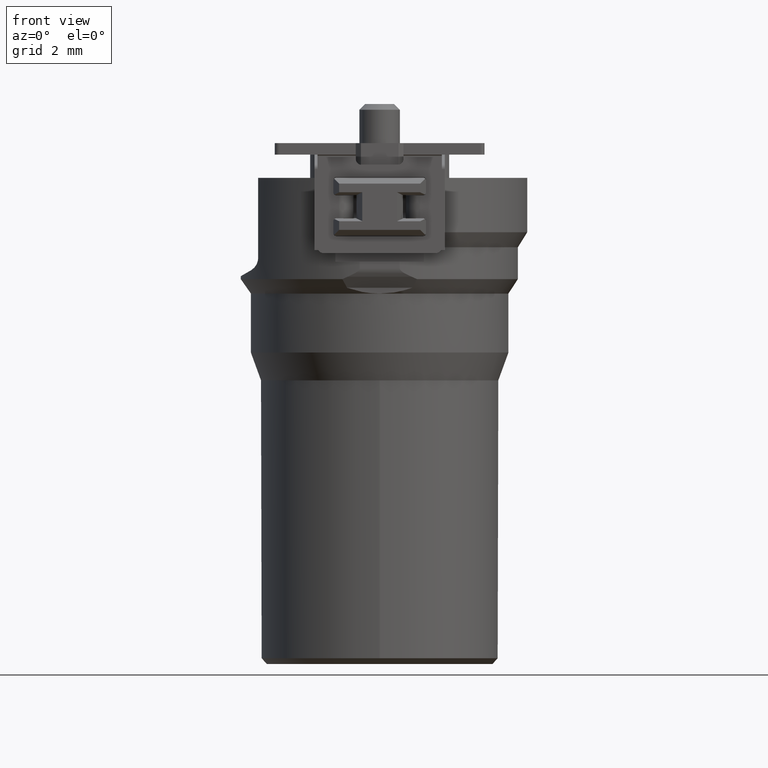
[diagram: clean part render]
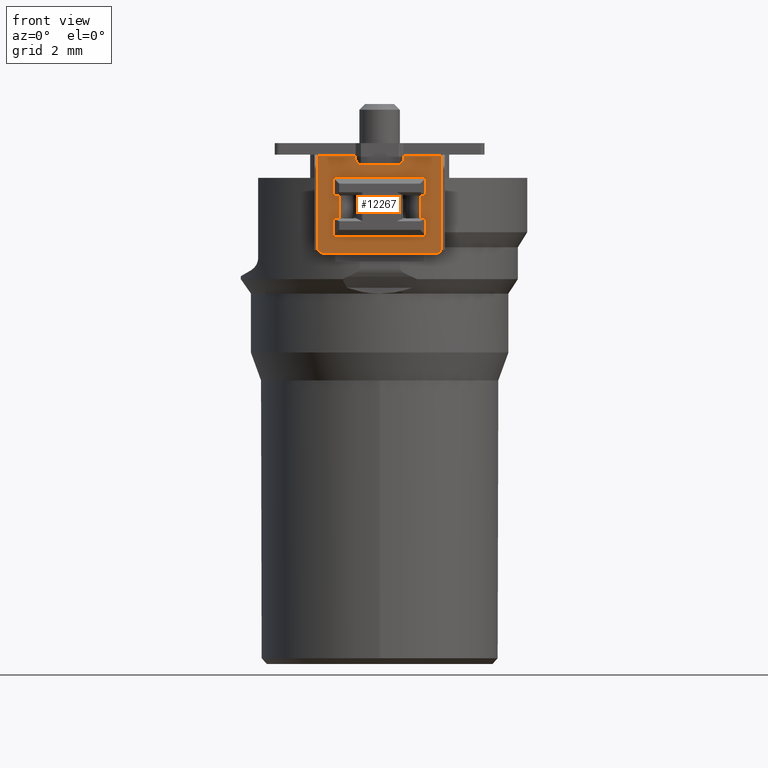
[diagram: same view with one face highlighted and labeled with its STEP entity id]
A machine part, front view. The second image highlights one B-rep face of the part: STEP entity #12267.
In plain terms, the highlighted planar face has unit normal (0, 1, 0).
Its self-contained STEP definition (entity closure, byte-faithful):
#2757=CARTESIAN_POINT('',(6.25E-1,-5.7E0,-5.514601836603E-1));
#2758=DIRECTION('',(0.E0,1.E0,0.E0));
#2759=DIRECTION('',(1.E0,0.E0,0.E0));
#2760=AXIS2_PLACEMENT_3D('',#2757,#2758,#2759);
#2972=DIRECTION('',(1.E0,0.E0,0.E0));
#2973=VECTOR('',#2972,1.325E0);
#2974=CARTESIAN_POINT('',(-2.15E0,-5.7E0,-4.5E-1));
#2975=LINE('',#2974,#2973);
#2976=DIRECTION('',(0.E0,1.750792059818E-14,-1.E0));
#2977=VECTOR('',#2976,1.014601836603E-1);
#2978=CARTESIAN_POINT('',(-8.25E-1,-5.7E0,-4.5E-1));
#2979=LINE('',#2978,#2977);
#2980=DIRECTION('',(1.E0,0.E0,0.E0));
#2981=VECTOR('',#2980,1.25E0);
#2982=CARTESIAN_POINT('',(-6.25E-1,-5.7E0,-7.514601836603E-1));
#2983=LINE('',#2982,#2981);
#2984=DIRECTION('',(0.E0,1.750792059818E-14,-1.E0));
#2985=VECTOR('',#2984,1.014601836603E-1);
#2986=CARTESIAN_POINT('',(8.25E-1,-5.7E0,-4.5E-1));
#2987=LINE('',#2986,#2985);
#2988=DIRECTION('',(1.E0,0.E0,0.E0));
#2989=VECTOR('',#2988,1.325E0);
#2990=CARTESIAN_POINT('',(8.25E-1,-5.7E0,-4.5E-1));
#2991=LINE('',#2990,#2989);
#2992=DIRECTION('',(0.E0,0.E0,-1.E0));
#2993=VECTOR('',#2992,3.151460183660E0);
#2994=CARTESIAN_POINT('',(2.15E0,-5.7E0,-4.5E-1));
#2995=LINE('',#2994,#2993);
#2996=CARTESIAN_POINT('',(1.95E0,-5.7E0,-3.601460183660E0));
#2997=DIRECTION('',(0.E0,-1.E0,0.E0));
#2998=DIRECTION('',(0.E0,0.E0,-1.E0));
#2999=AXIS2_PLACEMENT_3D('',#2996,#2997,#2998);
#3001=DIRECTION('',(-1.E0,0.E0,0.E0));
#3002=VECTOR('',#3001,3.9E0);
#3003=CARTESIAN_POINT('',(1.95E0,-5.7E0,-3.801460183660E0));
#3004=LINE('',#3003,#3002);
#3005=CARTESIAN_POINT('',(-1.95E0,-5.7E0,-3.601460183660E0));
#3006=DIRECTION('',(0.E0,-1.E0,0.E0));
#3007=DIRECTION('',(-1.E0,0.E0,0.E0));
#3008=AXIS2_PLACEMENT_3D('',#3005,#3006,#3007);
#3010=DIRECTION('',(0.E0,0.E0,1.E0));
#3011=VECTOR('',#3010,3.151460183660E0);
#3012=CARTESIAN_POINT('',(-2.15E0,-5.7E0,-3.601460183660E0));
#3013=LINE('',#3012,#3011);
#3014=DIRECTION('',(0.E0,1.040043935800E-13,1.E0));
#3015=VECTOR('',#3014,8.539816339747E-3);
#3016=CARTESIAN_POINT('',(1.6E0,-5.7E0,-2.7E0));
#3017=LINE('',#3016,#3015);
#3018=DIRECTION('',(-1.E0,-2.664535259100E-14,0.E0));
#3019=VECTOR('',#3018,1.E-1);
#3020=CARTESIAN_POINT('',(1.5E0,-5.7E0,-2.591460183660E0));
#3021=LINE('',#3020,#3019);
#3022=DIRECTION('',(0.E0,0.E0,-1.E0));
#3023=VECTOR('',#3022,7.8E-1);
#3024=CARTESIAN_POINT('',(1.4E0,-5.7E0,-1.811460183660E0));
#3025=LINE('',#3024,#3023);
#3026=DIRECTION('',(1.E0,1.776356839400E-14,0.E0));
#3027=VECTOR('',#3026,1.E-1);
#3028=CARTESIAN_POINT('',(1.4E0,-5.7E0,-1.811460183660E0));
#3029=LINE('',#3028,#3027);
#3030=DIRECTION('',(0.E0,0.E0,1.E0));
#3031=VECTOR('',#3030,1.146018366026E-2);
#3032=CARTESIAN_POINT('',(1.6E0,-5.7E0,-1.711460183660E0));
#3033=LINE('',#3032,#3031);
#3034=DIRECTION('',(0.E0,0.E0,1.E0));
#3035=VECTOR('',#3034,2.353981633974E-2);
#3036=CARTESIAN_POINT('',(1.6E0,-5.7E0,-1.3E0));
#3037=LINE('',#3036,#3035);
#3038=DIRECTION('',(-1.E0,0.E0,0.E0));
#3039=VECTOR('',#3038,3.E0);
#3040=CARTESIAN_POINT('',(1.5E0,-5.7E0,-1.176460183660E0));
#3041=LINE('',#3040,#3039);
#3042=DIRECTION('',(0.E0,0.E0,-1.E0));
#3043=VECTOR('',#3042,2.353981633974E-2);
#3044=CARTESIAN_POINT('',(-1.6E0,-5.7E0,-1.276460183660E0));
#3045=LINE('',#3044,#3043);
#3046=DIRECTION('',(-1.937530946341E-14,0.E0,-1.E0));
#3047=VECTOR('',#3046,1.146018366026E-2);
#3048=CARTESIAN_POINT('',(-1.6E0,-5.7E0,-1.7E0));
#3049=LINE('',#3048,#3047);
#3050=DIRECTION('',(1.E0,-1.776356839400E-14,0.E0));
#3051=VECTOR('',#3050,1.E-1);
#3052=CARTESIAN_POINT('',(-1.5E0,-5.7E0,-1.811460183660E0));
#3053=LINE('',#3052,#3051);
#3054=DIRECTION('',(0.E0,0.E0,-1.E0));
#3055=VECTOR('',#3054,7.8E-1);
#3056=CARTESIAN_POINT('',(-1.4E0,-5.7E0,-1.811460183660E0));
#3057=LINE('',#3056,#3055);
#3058=DIRECTION('',(-1.E0,0.E0,0.E0));
#3059=VECTOR('',#3058,1.E-1);
#3060=CARTESIAN_POINT('',(-1.4E0,-5.7E0,-2.591460183660E0));
#3061=LINE('',#3060,#3059);
#3062=DIRECTION('',(2.600109839500E-14,-1.040043935800E-13,-1.E0));
#3063=VECTOR('',#3062,8.539816339747E-3);
#3064=CARTESIAN_POINT('',(-1.6E0,-5.7E0,-2.691460183660E0));
#3065=LINE('',#3064,#3063);
#3066=DIRECTION('',(0.E0,3.356660071239E-14,-1.E0));
#3067=VECTOR('',#3066,2.646018366025E-2);
#3068=CARTESIAN_POINT('',(-1.6E0,-5.7E0,-3.1E0));
#3069=LINE('',#3068,#3067);
#3070=DIRECTION('',(1.E0,0.E0,0.E0));
#3071=VECTOR('',#3070,3.E0);
#3072=CARTESIAN_POINT('',(-1.5E0,-5.7E0,-3.226460183660E0));
#3073=LINE('',#3072,#3071);
#3074=DIRECTION('',(0.E0,-3.356660071239E-14,1.E0));
#3075=VECTOR('',#3074,2.646018366025E-2);
#3076=CARTESIAN_POINT('',(1.6E0,-5.7E0,-3.126460183660E0));
#3077=LINE('',#3076,#3075);
#3234=CARTESIAN_POINT('',(-6.25E-1,-5.7E0,-5.514601836603E-1));
#3235=DIRECTION('',(0.E0,1.E0,0.E0));
#3236=DIRECTION('',(0.E0,0.E0,-1.E0));
#3237=AXIS2_PLACEMENT_3D('',#3234,#3235,#3236);
#3324=DIRECTION('',(0.E0,0.E0,1.E0));
#3325=VECTOR('',#3324,4.E-1);
#3326=CARTESIAN_POINT('',(1.6E0,-5.7E0,-3.1E0));
#3327=LINE('',#3326,#3325);
#3387=CARTESIAN_POINT('',(1.5E0,-5.7E0,-3.126460183660E0));
#3388=DIRECTION('',(0.E0,1.E0,0.E0));
#3389=DIRECTION('',(1.E0,0.E0,0.E0));
#3390=AXIS2_PLACEMENT_3D('',#3387,#3388,#3389);
#3392=CARTESIAN_POINT('',(-1.5E0,-5.7E0,-3.126460183660E0));
#3393=DIRECTION('',(0.E0,1.E0,0.E0));
#3394=DIRECTION('',(0.E0,0.E0,-1.E0));
#3395=AXIS2_PLACEMENT_3D('',#3392,#3393,#3394);
#3410=DIRECTION('',(0.E0,0.E0,-1.E0));
#3411=VECTOR('',#3410,4.E-1);
#3412=CARTESIAN_POINT('',(-1.6E0,-5.7E0,-2.7E0));
#3413=LINE('',#3412,#3411);
#3444=CARTESIAN_POINT('',(-1.5E0,-5.7E0,-2.691460183660E0));
#3445=DIRECTION('',(0.E0,1.E0,0.E0));
#3446=DIRECTION('',(-1.E0,0.E0,0.E0));
#3447=AXIS2_PLACEMENT_3D('',#3444,#3445,#3446);
#3610=CARTESIAN_POINT('',(-1.5E0,-5.7E0,-1.711460183660E0));
#3611=DIRECTION('',(0.E0,1.E0,0.E0));
#3612=DIRECTION('',(0.E0,0.E0,-1.E0));
#3613=AXIS2_PLACEMENT_3D('',#3610,#3611,#3612);
#3637=DIRECTION('',(0.E0,0.E0,-1.E0));
#3638=VECTOR('',#3637,4.E-1);
#3639=CARTESIAN_POINT('',(-1.6E0,-5.7E0,-1.3E0));
#3640=LINE('',#3639,#3638);
#3700=CARTESIAN_POINT('',(-1.5E0,-5.7E0,-1.276460183660E0));
#3701=DIRECTION('',(0.E0,1.E0,0.E0));
#3702=DIRECTION('',(-1.E0,0.E0,0.E0));
#3703=AXIS2_PLACEMENT_3D('',#3700,#3701,#3702);
#3705=CARTESIAN_POINT('',(1.5E0,-5.7E0,-1.276460183660E0));
#3706=DIRECTION('',(0.E0,1.E0,0.E0));
#3707=DIRECTION('',(0.E0,0.E0,1.E0));
#3708=AXIS2_PLACEMENT_3D('',#3705,#3706,#3707);
#3723=DIRECTION('',(0.E0,0.E0,1.E0));
#3724=VECTOR('',#3723,4.E-1);
#3725=CARTESIAN_POINT('',(1.6E0,-5.7E0,-1.7E0));
#3726=LINE('',#3725,#3724);
#3761=CARTESIAN_POINT('',(1.5E0,-5.7E0,-1.711460183660E0));
#3762=DIRECTION('',(0.E0,1.E0,0.E0));
#3763=DIRECTION('',(1.E0,0.E0,0.E0));
#3764=AXIS2_PLACEMENT_3D('',#3761,#3762,#3763);
#3923=CARTESIAN_POINT('',(1.5E0,-5.7E0,-2.691460183660E0));
#3924=DIRECTION('',(0.E0,1.E0,0.E0));
#3925=DIRECTION('',(0.E0,0.E0,1.E0));
#3926=AXIS2_PLACEMENT_3D('',#3923,#3924,#3925);
#7559=CARTESIAN_POINT('',(8.25E-1,-5.7E0,-5.514601836603E-1));
#7561=VERTEX_POINT('',#7559);
#7563=CARTESIAN_POINT('',(-8.25E-1,-5.7E0,-5.514601836603E-1));
#7565=VERTEX_POINT('',#7563);
#7591=CARTESIAN_POINT('',(-6.25E-1,-5.7E0,-7.514601836603E-1));
#7592=CARTESIAN_POINT('',(6.25E-1,-5.7E0,-7.514601836603E-1));
#7593=VERTEX_POINT('',#7591);
#7594=VERTEX_POINT('',#7592);
#7595=CARTESIAN_POINT('',(1.95E0,-5.7E0,-3.801460183660E0));
#7596=CARTESIAN_POINT('',(2.15E0,-5.7E0,-3.601460183660E0));
#7597=VERTEX_POINT('',#7595);
#7598=VERTEX_POINT('',#7596);
#7601=CARTESIAN_POINT('',(-2.15E0,-5.7E0,-3.601460183660E0));
#7602=CARTESIAN_POINT('',(-1.95E0,-5.7E0,-3.801460183660E0));
#7603=VERTEX_POINT('',#7601);
#7604=VERTEX_POINT('',#7602);
#7655=CARTESIAN_POINT('',(-8.25E-1,-5.7E0,-4.5E-1));
#7656=VERTEX_POINT('',#7655);
#7657=CARTESIAN_POINT('',(8.25E-1,-5.7E0,-4.5E-1));
#7658=VERTEX_POINT('',#7657);
#7663=CARTESIAN_POINT('',(-2.15E0,-5.7E0,-4.5E-1));
#7664=VERTEX_POINT('',#7663);
#7665=CARTESIAN_POINT('',(2.15E0,-5.7E0,-4.5E-1));
#7666=VERTEX_POINT('',#7665);
#7695=CARTESIAN_POINT('',(-1.5E0,-5.7E0,-3.226460183660E0));
#7696=CARTESIAN_POINT('',(1.5E0,-5.7E0,-3.226460183660E0));
#7697=VERTEX_POINT('',#7695);
#7698=VERTEX_POINT('',#7696);
#7699=CARTESIAN_POINT('',(1.5E0,-5.7E0,-1.176460183660E0));
#7700=CARTESIAN_POINT('',(-1.5E0,-5.7E0,-1.176460183660E0));
#7701=VERTEX_POINT('',#7699);
#7702=VERTEX_POINT('',#7700);
#7703=CARTESIAN_POINT('',(1.6E0,-5.7E0,-3.126460183660E0));
#7704=VERTEX_POINT('',#7703);
#7705=CARTESIAN_POINT('',(1.5E0,-5.7E0,-2.591460183660E0));
#7706=CARTESIAN_POINT('',(1.6E0,-5.7E0,-2.691460183660E0));
#7707=VERTEX_POINT('',#7705);
#7708=VERTEX_POINT('',#7706);
#7709=CARTESIAN_POINT('',(1.6E0,-5.7E0,-1.711460183660E0));
#7710=CARTESIAN_POINT('',(1.5E0,-5.7E0,-1.811460183660E0));
#7711=VERTEX_POINT('',#7709);
#7712=VERTEX_POINT('',#7710);
#7713=CARTESIAN_POINT('',(1.6E0,-5.7E0,-1.276460183660E0));
#7714=VERTEX_POINT('',#7713);
#7715=CARTESIAN_POINT('',(-1.6E0,-5.7E0,-3.126460183660E0));
#7716=VERTEX_POINT('',#7715);
#7717=CARTESIAN_POINT('',(-1.6E0,-5.7E0,-2.691460183660E0));
#7718=CARTESIAN_POINT('',(-1.5E0,-5.7E0,-2.591460183660E0));
#7719=VERTEX_POINT('',#7717);
#7720=VERTEX_POINT('',#7718);
#7721=CARTESIAN_POINT('',(-1.5E0,-5.7E0,-1.811460183660E0));
#7722=CARTESIAN_POINT('',(-1.6E0,-5.7E0,-1.711460183660E0));
#7723=VERTEX_POINT('',#7721);
#7724=VERTEX_POINT('',#7722);
#7725=CARTESIAN_POINT('',(-1.6E0,-5.7E0,-1.276460183660E0));
#7726=VERTEX_POINT('',#7725);
#7727=CARTESIAN_POINT('',(1.4E0,-5.7E0,-2.591460183660E0));
#7728=VERTEX_POINT('',#7727);
#7729=CARTESIAN_POINT('',(1.4E0,-5.7E0,-1.811460183660E0));
#7730=VERTEX_POINT('',#7729);
#7737=CARTESIAN_POINT('',(-1.4E0,-5.7E0,-1.811460183660E0));
#7738=VERTEX_POINT('',#7737);
#7739=CARTESIAN_POINT('',(-1.4E0,-5.7E0,-2.591460183660E0));
#7740=VERTEX_POINT('',#7739);
#7827=CARTESIAN_POINT('',(1.6E0,-5.7E0,-3.1E0));
#7828=CARTESIAN_POINT('',(1.6E0,-5.7E0,-2.7E0));
#7829=VERTEX_POINT('',#7827);
#7830=VERTEX_POINT('',#7828);
#7843=CARTESIAN_POINT('',(1.6E0,-5.7E0,-1.7E0));
#7844=CARTESIAN_POINT('',(1.6E0,-5.7E0,-1.3E0));
#7845=VERTEX_POINT('',#7843);
#7846=VERTEX_POINT('',#7844);
#7847=CARTESIAN_POINT('',(-1.6E0,-5.7E0,-1.3E0));
#7848=CARTESIAN_POINT('',(-1.6E0,-5.7E0,-1.7E0));
#7849=VERTEX_POINT('',#7847);
#7850=VERTEX_POINT('',#7848);
#7863=CARTESIAN_POINT('',(-1.6E0,-5.7E0,-2.7E0));
#7864=CARTESIAN_POINT('',(-1.6E0,-5.7E0,-3.1E0));
#7865=VERTEX_POINT('',#7863);
#7866=VERTEX_POINT('',#7864);
#12186=CARTESIAN_POINT('',(0.E0,-5.7E0,4.285398163397E-1));
#12187=DIRECTION('',(0.E0,1.E0,0.E0));
#12188=DIRECTION('',(1.E0,0.E0,0.E0));
#12189=AXIS2_PLACEMENT_3D('',#12186,#12187,#12188);
#12190=PLANE('',#12189);
#12192=ORIENTED_EDGE('',*,*,#12191,.T.);
#12194=ORIENTED_EDGE('',*,*,#12193,.T.);
#12196=ORIENTED_EDGE('',*,*,#12195,.F.);
#12197=ORIENTED_EDGE('',*,*,#11851,.T.);
#12198=ORIENTED_EDGE('',*,*,#11867,.F.);
#12199=ORIENTED_EDGE('',*,*,#11880,.F.);
#12200=ORIENTED_EDGE('',*,*,#11989,.T.);
#12201=ORIENTED_EDGE('',*,*,#11660,.T.);
#12202=ORIENTED_EDGE('',*,*,#11678,.F.);
#12204=ORIENTED_EDGE('',*,*,#12203,.T.);
#12205=ORIENTED_EDGE('',*,*,#11707,.F.);
#12206=ORIENTED_EDGE('',*,*,#11740,.T.);
#12207=EDGE_LOOP('',(#12192,#12194,#12196,#12197,#12198,#12199,#12200,#12201,
#12202,#12204,#12205,#12206));
#12208=FACE_OUTER_BOUND('',#12207,.F.);
#12210=ORIENTED_EDGE('',*,*,#12209,.T.);
#12212=ORIENTED_EDGE('',*,*,#12211,.F.);
#12214=ORIENTED_EDGE('',*,*,#12213,.T.);
#12216=ORIENTED_EDGE('',*,*,#12215,.F.);
#12218=ORIENTED_EDGE('',*,*,#12217,.T.);
#12220=ORIENTED_EDGE('',*,*,#12219,.F.);
#12222=ORIENTED_EDGE('',*,*,#12221,.T.);
#12224=ORIENTED_EDGE('',*,*,#12223,.T.);
#12226=ORIENTED_EDGE('',*,*,#12225,.T.);
#12228=ORIENTED_EDGE('',*,*,#12227,.F.);
#12230=ORIENTED_EDGE('',*,*,#12229,.T.);
#12232=ORIENTED_EDGE('',*,*,#12231,.F.);
#12234=ORIENTED_EDGE('',*,*,#12233,.T.);
#12236=ORIENTED_EDGE('',*,*,#12235,.T.);
#12238=ORIENTED_EDGE('',*,*,#12237,.T.);
#12240=ORIENTED_EDGE('',*,*,#12239,.F.);
#12242=ORIENTED_EDGE('',*,*,#12241,.T.);
#12244=ORIENTED_EDGE('',*,*,#12243,.T.);
#12246=ORIENTED_EDGE('',*,*,#12245,.T.);
#12248=ORIENTED_EDGE('',*,*,#12247,.F.);
#12250=ORIENTED_EDGE('',*,*,#12249,.T.);
#12252=ORIENTED_EDGE('',*,*,#12251,.T.);
#12254=ORIENTED_EDGE('',*,*,#12253,.T.);
#12256=ORIENTED_EDGE('',*,*,#12255,.F.);
#12258=ORIENTED_EDGE('',*,*,#12257,.T.);
#12260=ORIENTED_EDGE('',*,*,#12259,.F.);
#12262=ORIENTED_EDGE('',*,*,#12261,.T.);
#12264=ORIENTED_EDGE('',*,*,#12263,.T.);
#12265=EDGE_LOOP('',(#12210,#12212,#12214,#12216,#12218,#12220,#12222,#12224,
#12226,#12228,#12230,#12232,#12234,#12236,#12238,#12240,#12242,#12244,#12246,
#12248,#12250,#12252,#12254,#12256,#12258,#12260,#12262,#12264));
#12266=FACE_BOUND('',#12265,.F.);
#2761=CIRCLE('',#2760,2.E-1);
#3000=CIRCLE('',#2999,2.E-1);
#3009=CIRCLE('',#3008,2.E-1);
#3238=CIRCLE('',#3237,2.E-1);
#3391=CIRCLE('',#3390,1.E-1);
#3396=CIRCLE('',#3395,1.E-1);
#3448=CIRCLE('',#3447,1.E-1);
#3614=CIRCLE('',#3613,1.E-1);
#3704=CIRCLE('',#3703,1.E-1);
#3709=CIRCLE('',#3708,1.E-1);
#3765=CIRCLE('',#3764,1.E-1);
#3927=CIRCLE('',#3926,1.E-1);
#11660=EDGE_CURVE('',#7666,#7598,#2995,.T.);
#11678=EDGE_CURVE('',#7597,#7598,#3000,.T.);
#11707=EDGE_CURVE('',#7603,#7604,#3009,.T.);
#11740=EDGE_CURVE('',#7603,#7664,#3013,.T.);
#11851=EDGE_CURVE('',#7593,#7594,#2983,.T.);
#11867=EDGE_CURVE('',#7561,#7594,#2761,.T.);
#11880=EDGE_CURVE('',#7658,#7561,#2987,.T.);
#11989=EDGE_CURVE('',#7658,#7666,#2991,.T.);
#12191=EDGE_CURVE('',#7664,#7656,#2975,.T.);
#12193=EDGE_CURVE('',#7656,#7565,#2979,.T.);
#12195=EDGE_CURVE('',#7593,#7565,#3238,.T.);
#12203=EDGE_CURVE('',#7597,#7604,#3004,.T.);
#12209=EDGE_CURVE('',#7830,#7708,#3017,.T.);
#12211=EDGE_CURVE('',#7707,#7708,#3927,.T.);
#12213=EDGE_CURVE('',#7707,#7728,#3021,.T.);
#12215=EDGE_CURVE('',#7730,#7728,#3025,.T.);
#12217=EDGE_CURVE('',#7730,#7712,#3029,.T.);
#12219=EDGE_CURVE('',#7711,#7712,#3765,.T.);
#12221=EDGE_CURVE('',#7711,#7845,#3033,.T.);
#12223=EDGE_CURVE('',#7845,#7846,#3726,.T.);
#12225=EDGE_CURVE('',#7846,#7714,#3037,.T.);
#12227=EDGE_CURVE('',#7701,#7714,#3709,.T.);
#12229=EDGE_CURVE('',#7701,#7702,#3041,.T.);
#12231=EDGE_CURVE('',#7726,#7702,#3704,.T.);
#12233=EDGE_CURVE('',#7726,#7849,#3045,.T.);
#12235=EDGE_CURVE('',#7849,#7850,#3640,.T.);
#12237=EDGE_CURVE('',#7850,#7724,#3049,.T.);
#12239=EDGE_CURVE('',#7723,#7724,#3614,.T.);
#12241=EDGE_CURVE('',#7723,#7738,#3053,.T.);
#12243=EDGE_CURVE('',#7738,#7740,#3057,.T.);
#12245=EDGE_CURVE('',#7740,#7720,#3061,.T.);
#12247=EDGE_CURVE('',#7719,#7720,#3448,.T.);
#12249=EDGE_CURVE('',#7719,#7865,#3065,.T.);
#12251=EDGE_CURVE('',#7865,#7866,#3413,.T.);
#12253=EDGE_CURVE('',#7866,#7716,#3069,.T.);
#12255=EDGE_CURVE('',#7697,#7716,#3396,.T.);
#12257=EDGE_CURVE('',#7697,#7698,#3073,.T.);
#12259=EDGE_CURVE('',#7704,#7698,#3391,.T.);
#12261=EDGE_CURVE('',#7704,#7829,#3077,.T.);
#12263=EDGE_CURVE('',#7829,#7830,#3327,.T.);
#12267=ADVANCED_FACE('',(#12208,#12266),#12190,.F.);